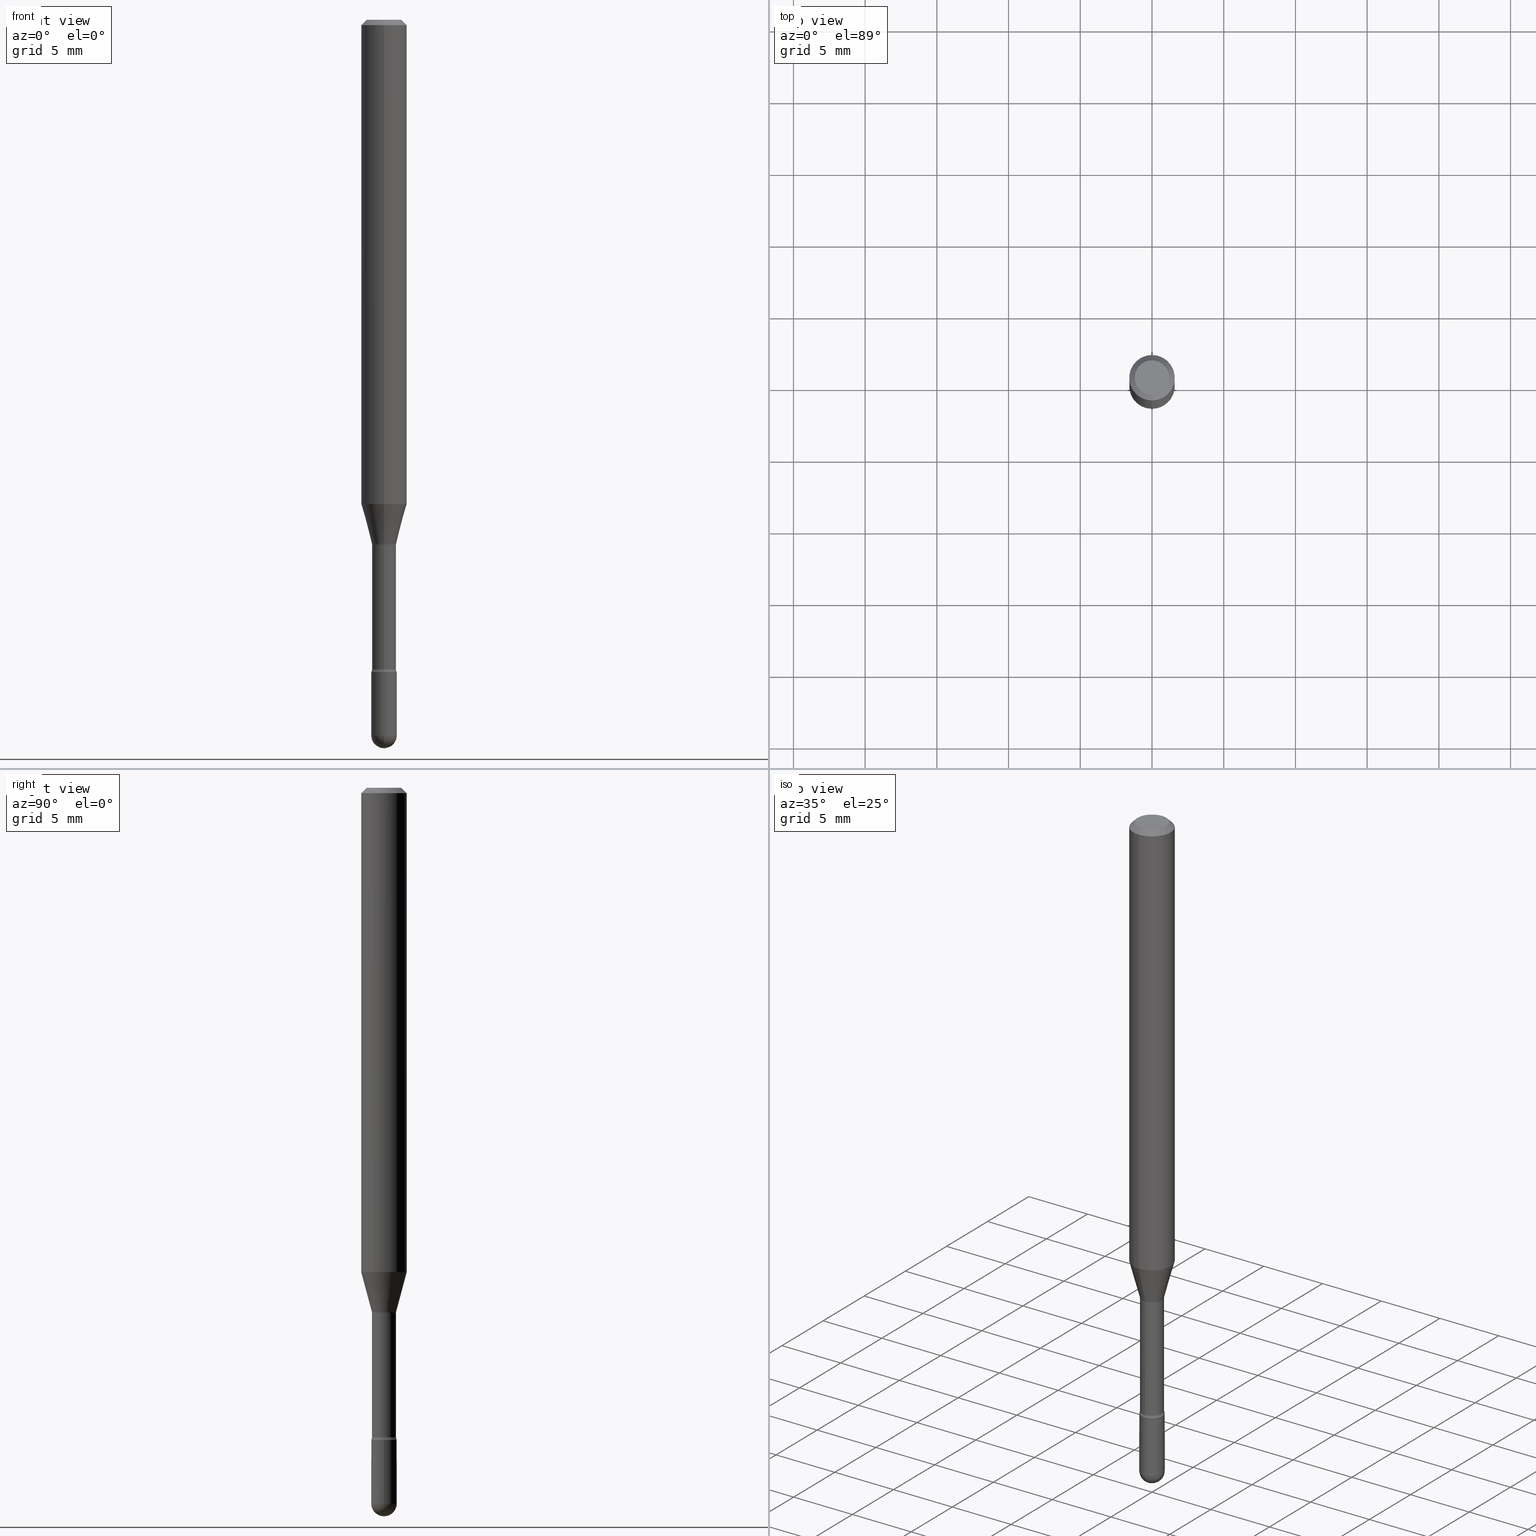
[diagram: canonical four-view strip — front | top / right | iso, engineering-drawing reading convention]
A machine part, canonical four-view strip (front | top / right | iso — engineering-drawing reading convention). The complete STEP part file that produces these views, byte-faithful:
ISO-10303-21;
HEADER;
FILE_DESCRIPTION (( 'STEP AP203' ),
    '1' );
FILE_NAME ('04553.STEP',
    '2024-04-09T21:52:09',
    ( '' ),
    ( '' ),
    'SwSTEP 2.0',
    'SolidWorks 2023',
    '' );
FILE_SCHEMA (( 'CONFIG_CONTROL_DESIGN' ));
ENDSEC;

DATA;
#1 = FACE_OUTER_BOUND ( 'NONE', #145, .T. ) ;
#2 = ADVANCED_FACE ( 'NONE', ( #355 ), #127, .T. ) ;
#3 = CC_DESIGN_PERSON_AND_ORGANIZATION_ASSIGNMENT ( #174, #13, ( #522 ) ) ;
#4 =( CONVERSION_BASED_UNIT ( 'INCH', #405 ) LENGTH_UNIT ( ) NAMED_UNIT ( #55 ) );
#5 = AXIS2_PLACEMENT_3D ( 'NONE', #250, #348, #257 ) ;
#6 = ORIENTED_EDGE ( 'NONE', *, *, #410, .F. ) ;
#7 = LINE ( 'NONE', #47, #313 ) ;
#8 = ORIENTED_EDGE ( 'NONE', *, *, #318, .F. ) ;
#9 = COORDINATED_UNIVERSAL_TIME_OFFSET ( 5, 0, .BEHIND. ) ;
#10 = DIRECTION ( 'NONE',  ( 1.000000000000000000, -7.105427357601001070E-15, 4.926314578134730342E-29 ) ) ;
#11 = EDGE_CURVE ( 'NONE', #330, #320, #337, .T. ) ;
#12 = DIRECTION ( 'NONE',  ( -2.445468806185136597E-29, 3.491481338843145583E-15, 1.000000000000000000 ) ) ;
#13 = PERSON_AND_ORGANIZATION_ROLE ( 'design_owner' ) ;
#14 = ORIENTED_EDGE ( 'NONE', *, *, #156, .T. ) ;
#15 = CARTESIAN_POINT ( 'NONE',  ( 4.805346204153793345E-29, -6.860760830826780393E-15, -1.964999999999999858 ) ) ;
#16 = ADVANCED_FACE ( 'NONE', ( #224 ), #151, .T. ) ;
#17 = CIRCLE ( 'NONE', #29, 0.03500000000000000333 ) ;
#18 = FACE_OUTER_BOUND ( 'NONE', #560, .T. ) ;
#19 = DATE_TIME_ROLE ( 'classification_date' ) ;
#20 = CARTESIAN_POINT ( 'NONE',  ( -4.364351673553592768E-16, -0.06250000000000467681, -1.329531296095961101 ) ) ;
#21 = VERTEX_POINT ( 'NONE', #203 ) ;
#22 = CARTESIAN_POINT ( 'NONE',  ( 3.407447217031514627E-16, 0.03341111260565895330, -1.438092501787272992 ) ) ;
#23 = AXIS2_PLACEMENT_3D ( 'NONE', #57, #360, #187 ) ;
#24 = DIRECTION ( 'NONE',  ( -6.982962677686266711E-15, -1.000000000000000000, 3.491405365317297718E-15 ) ) ;
#25 = DIRECTION ( 'NONE',  ( 1.000000000000000000, -6.982962677686276966E-15, 0.000000000000000000 ) ) ;
#26 = ADVANCED_FACE ( 'NONE', ( #150 ), #115, .F. ) ;
#27 = AXIS2_PLACEMENT_3D ( 'NONE', #528, #482, #288 ) ;
#28 = ORIENTED_EDGE ( 'NONE', *, *, #479, .T. ) ;
#29 = AXIS2_PLACEMENT_3D ( 'NONE', #159, #463, #322 ) ;
#30 = APPROVAL_PERSON_ORGANIZATION ( #49, #34, #210 ) ;
#31 = ORIENTED_EDGE ( 'NONE', *, *, #123, .T. ) ;
#32 = ORIENTED_EDGE ( 'NONE', *, *, #11, .F. ) ;
#33 = DIRECTION ( 'NONE',  ( -2.445521858214685892E-29, 3.491405365317297324E-15, 1.000000000000000000 ) ) ;
#34 = APPROVAL ( #446, 'UNSPECIFIED' ) ;
#35 = LINE ( 'NONE', #391, #380 ) ;
#36 = VERTEX_POINT ( 'NONE', #531 ) ;
#37 = DIRECTION ( 'NONE',  ( -6.982962677686266711E-15, -1.000000000000000000, 0.000000000000000000 ) ) ;
#38 = CIRCLE ( 'NONE', #166, 0.03500000000000000333 ) ;
#39 = DIRECTION ( 'NONE',  ( -1.000000000000000000, 6.982962677686265922E-15, -4.883557194083112340E-29 ) ) ;
#40 = DIRECTION ( 'NONE',  ( -2.445521858214685892E-29, 3.491405365317297324E-15, 1.000000000000000000 ) ) ;
#41 = PLANE ( 'NONE',  #349 ) ;
#42 = FACE_OUTER_BOUND ( 'NONE', #286, .T. ) ;
#43 = DIRECTION ( 'NONE',  ( -6.982962677686265922E-15, -1.000000000000000000, 3.491405365317297324E-15 ) ) ;
#44 = ORIENTED_EDGE ( 'NONE', *, *, #156, .F. ) ;
#45 = CALENDAR_DATE ( 2024, 9, 4 ) ;
#46 = AXIS2_PLACEMENT_3D ( 'NONE', #362, #262, #401 ) ;
#47 = CARTESIAN_POINT ( 'NONE',  ( 4.440892098500625669E-16, 0.06250000000000000000, 2.598605635589149558E-16 ) ) ;
#48 = EDGE_CURVE ( 'NONE', #272, #545, #238, .T. ) ;
#49 = PERSON_AND_ORGANIZATION ( #180, #462 ) ;
#50 = CARTESIAN_POINT ( 'NONE',  ( 4.377389163071394665E-29, -6.249751596529231267E-15, -1.790000000000000036 ) ) ;
#51 = CARTESIAN_POINT ( 'NONE',  ( 0.000000000000000000, 0.000000000000000000, 0.000000000000000000 ) ) ;
#52 = ADVANCED_FACE ( 'NONE', ( #254 ), #152, .T. ) ;
#53 = CARTESIAN_POINT ( 'NONE',  ( 3.403499704291318562E-16, 0.04789999999999382252, -1.782345589506696193 ) ) ;
#54 =( LENGTH_UNIT ( ) NAMED_UNIT ( * ) SI_UNIT ( $, .METRE. ) );
#55 = DIMENSIONAL_EXPONENTS ( 1.000000000000000000, 0.000000000000000000, 0.000000000000000000, 0.000000000000000000, 0.000000000000000000, 0.000000000000000000, 0.000000000000000000 ) ;
#56 = AXIS2_PLACEMENT_3D ( 'NONE', #356, #136, #298 ) ;
#57 = CARTESIAN_POINT ( 'NONE',  ( 3.668282787322048631E-31, -5.237108047975974089E-17, -0.01500000000000008271 ) ) ;
#58 = AXIS2_PLACEMENT_3D ( 'NONE', #276, #418, #465 ) ;
#59 = VECTOR ( 'NONE', #66, 39.37007874015749564 ) ;
#60 = LOCAL_TIME ( 17, 52, 9.000000000000000000, #443 ) ;
#61 = PERSON_AND_ORGANIZATION_ROLE ( 'classification_officer' ) ;
#62 = DIRECTION ( 'NONE',  ( -6.982962677686265922E-15, -1.000000000000000000, 3.491405365317297324E-15 ) ) ;
#63 = DIRECTION ( 'NONE',  ( -6.982962677686266711E-15, -1.000000000000000000, 0.000000000000000000 ) ) ;
#64 = APPROVAL_DATE_TIME ( #299, #34 ) ;
#65 = ORIENTED_EDGE ( 'NONE', *, *, #217, .T. ) ;
#66 = DIRECTION ( 'NONE',  ( -1.807323732225329350E-15, -0.2588190451025180194, 0.9659258262890689783 ) ) ;
#67 = AXIS2_PLACEMENT_3D ( 'NONE', #525, #485, #520 ) ;
#68 = AXIS2_PLACEMENT_3D ( 'NONE', #437, #534, #487 ) ;
#69 = LOCAL_TIME ( 17, 52, 9.000000000000000000, #413 ) ;
#70 = CARTESIAN_POINT ( 'NONE',  ( -2.297394720958428512E-16, -0.03290000000000502939, -1.441974787463810914 ) ) ;
#71 = EDGE_LOOP ( 'NONE', ( #227, #251, #491, #133 ) ) ;
#72 = ORIENTED_EDGE ( 'NONE', *, *, #230, .F. ) ;
#73 = ADVANCED_FACE ( 'NONE', ( #295 ), #41, .F. ) ;
#74 = APPLICATION_CONTEXT ( 'configuration controlled 3d designs of mechanical parts and assemblies' ) ;
#75 = TOROIDAL_SURFACE ( 'NONE', #399, 0.04790000000000004671, 0.01500000000000008098 ) ;
#76 = CIRCLE ( 'NONE', #68, 0.04749999999999999362 ) ;
#77 = ORIENTED_EDGE ( 'NONE', *, *, #83, .F. ) ;
#78 = CARTESIAN_POINT ( 'NONE',  ( -0.03500000000000000333, 2.486899575160350887E-16, -1.721627281589217108E-30 ) ) ;
#79 = ORIENTED_EDGE ( 'NONE', *, *, #314, .F. ) ;
#80 = DIRECTION ( 'NONE',  ( -2.445521858214685892E-29, 3.491405365317297324E-15, 1.000000000000000000 ) ) ;
#81 = EDGE_LOOP ( 'NONE', ( #533, #427, #87, #346 ) ) ;
#82 = DIRECTION ( 'NONE',  ( 1.000000000000000000, -6.982962677686276966E-15, 0.000000000000000000 ) ) ;
#83 = EDGE_CURVE ( 'NONE', #532, #21, #35, .T. ) ;
#84 = CARTESIAN_POINT ( 'NONE',  ( 4.805346204153793345E-29, -6.860760830826780393E-15, -1.964999999999999858 ) ) ;
#85 = CIRCLE ( 'NONE', #514, 0.03341111260566397706 ) ;
#86 = CARTESIAN_POINT ( 'NONE',  ( 4.805346204153793345E-29, -6.860760830826780393E-15, -1.964999999999999858 ) ) ;
#87 = ORIENTED_EDGE ( 'NONE', *, *, #314, .T. ) ;
#88 = CARTESIAN_POINT ( 'NONE',  ( 3.516886647255418593E-29, -5.020963876562660420E-15, -1.438092501787272992 ) ) ;
#89 = VERTEX_POINT ( 'NONE', #394 ) ;
#90 = FACE_OUTER_BOUND ( 'NONE', #81, .T. ) ;
#91 = CALENDAR_DATE ( 2024, 9, 4 ) ;
#92 = AXIS2_PLACEMENT_3D ( 'NONE', #122, #476, #199 ) ;
#93 = CIRCLE ( 'NONE', #211, 0.01500000000000001853 ) ;
#94 = FACE_OUTER_BOUND ( 'NONE', #340, .T. ) ;
#95 = APPLICATION_PROTOCOL_DEFINITION ( 'international standard', 'config_control_design', 1994, #74 ) ;
#96 = DIRECTION ( 'NONE',  ( -6.982962677686265922E-15, -1.000000000000000000, 3.491405365317296141E-15 ) ) ;
#97 = EDGE_LOOP ( 'NONE', ( #163, #455 ) ) ;
#98 = DIRECTION ( 'NONE',  ( -2.445521858214685892E-29, 3.491405365317297324E-15, 1.000000000000000000 ) ) ;
#99 = APPLICATION_CONTEXT ( 'configuration controlled 3d designs of mechanical parts and assemblies' ) ;
#100 = ADVANCED_FACE ( 'NONE', ( #1 ), #139, .T. ) ;
#101 = AXIS2_PLACEMENT_3D ( 'NONE', #88, #436, #125 ) ;
#102 = EDGE_CURVE ( 'NONE', #331, #513, #302, .T. ) ;
#103 = FACE_OUTER_BOUND ( 'NONE', #97, .T. ) ;
#104 = CC_DESIGN_SECURITY_CLASSIFICATION ( #383, ( #454 ) ) ;
#105 = ORIENTED_EDGE ( 'NONE', *, *, #442, .F. ) ;
#106 = CARTESIAN_POINT ( 'NONE',  ( -4.364351673553912750E-16, -0.06250000000000005551, -0.01499999999999986587 ) ) ;
#107 = EDGE_LOOP ( 'NONE', ( #464, #508, #474, #509 ) ) ;
#108 = CYLINDRICAL_SURFACE ( 'NONE', #468, 0.03500000000000000333 ) ;
#109 = LINE ( 'NONE', #392, #111 ) ;
#110 = CLOSED_SHELL ( 'NONE', ( #26, #376, #538, #202, #526, #52, #338, #466, #2, #197, #73, #209, #261, #419 ) ) ;
#111 = VECTOR ( 'NONE', #279, 39.37007874015748143 ) ;
#112 = EDGE_CURVE ( 'NONE', #457, #36, #161, .T. ) ;
#113 = CARTESIAN_POINT ( 'NONE',  ( -2.297394720958780541E-16, -0.03289999999999998481, 5.929406354101851004E-16 ) ) ;
#114 = EDGE_CURVE ( 'NONE', #513, #89, #7, .T. ) ;
#115 = TOROIDAL_SURFACE ( 'NONE', #27, 0.04789999999999999813, 0.01500000000000002373 ) ;
#116 = EDGE_LOOP ( 'NONE', ( #556, #14, #241, #77, #515 ) ) ;
#117 = CIRCLE ( 'NONE', #252, 0.06250000000000000000 ) ;
#118 = ORIENTED_EDGE ( 'NONE', *, *, #208, .T. ) ;
#119 = DIRECTION ( 'NONE',  ( -6.982962677686265922E-15, -1.000000000000000000, 3.491405365317296141E-15 ) ) ;
#120 = DIRECTION ( 'NONE',  ( 6.982962677686265922E-15, 1.000000000000000000, -3.483106191921935554E-15 ) ) ;
#121 = DIRECTION ( 'NONE',  ( 1.000000000000000000, -6.982962677686265922E-15, 4.876176775795936353E-29 ) ) ;
#122 = CARTESIAN_POINT ( 'NONE',  ( 4.805346204153793345E-29, -6.860760830826780393E-15, -1.964999999999999858 ) ) ;
#123 = EDGE_CURVE ( 'NONE', #164, #425, #480, .T. ) ;
#124 = CARTESIAN_POINT ( 'NONE',  ( -2.333085523452895390E-16, -0.03341111260566900082, -1.438092501787272992 ) ) ;
#125 = DIRECTION ( 'NONE',  ( -6.982962677686266711E-15, -1.000000000000000000, 0.000000000000000000 ) ) ;
#126 = ORIENTED_EDGE ( 'NONE', *, *, #11, .T. ) ;
#127 = CONICAL_SURFACE ( 'NONE', #536, 0.06250000000000000000, 0.7853981633974483900 ) ;
#129 = AXIS2_PLACEMENT_3D ( 'NONE', #84, #422, #157 ) ;
#128 =( NAMED_UNIT ( * ) PLANE_ANGLE_UNIT ( ) SI_UNIT ( $, .RADIAN. ) );
#130 = AXIS2_PLACEMENT_3D ( 'NONE', #51, #256, #141 ) ;
#131 = ORIENTED_EDGE ( 'NONE', *, *, #123, .F. ) ;
#132 = CARTESIAN_POINT ( 'NONE',  ( -2.444036937189758884E-16, -0.03500000000000629691, -1.789999999999999813 ) ) ;
#133 = ORIENTED_EDGE ( 'NONE', *, *, #230, .T. ) ;
#134 = PERSON_AND_ORGANIZATION ( #180, #462 ) ;
#135 = ORIENTED_EDGE ( 'NONE', *, *, #243, .T. ) ;
#136 = DIRECTION ( 'NONE',  ( 2.445521858214685331E-29, -3.491405365317297324E-15, -1.000000000000000000 ) ) ;
#137 = ORIENTED_EDGE ( 'NONE', *, *, #518, .T. ) ;
#138 = COORDINATED_UNIVERSAL_TIME_OFFSET ( 5, 0, .BEHIND. ) ;
#139 = SPHERICAL_SURFACE ( 'NONE', #506, 0.03500000000000001721 ) ;
#140 = CC_DESIGN_DATE_AND_TIME_ASSIGNMENT ( #297, #490, ( #172 ) ) ;
#141 = DIRECTION ( 'NONE',  ( 1.000000000000000000, 0.000000000000000000, 0.000000000000000000 ) ) ;
#142 = AXIS2_PLACEMENT_3D ( 'NONE', #438, #255, #285 ) ;
#143 = VECTOR ( 'NONE', #160, 39.37007874015748143 ) ;
#144 = CARTESIAN_POINT ( 'NONE',  ( -1.169113584055446105E-44, 1.669184350826100908E-30, 4.780733988912460139E-16 ) ) ;
#145 = EDGE_LOOP ( 'NONE', ( #290, #444, #420, #553 ) ) ;
#146 = EDGE_LOOP ( 'NONE', ( #334, #396, #65, #147 ) ) ;
#147 = ORIENTED_EDGE ( 'NONE', *, *, #328, .T. ) ;
#148 = DIRECTION ( 'NONE',  ( -6.982962677686267499E-15, -1.000000000000000000, 0.000000000000000000 ) ) ;
#149 = CARTESIAN_POINT ( 'NONE',  ( 3.516886647255418593E-29, -5.020963876562660420E-15, -1.438092501787272992 ) ) ;
#150 = FACE_OUTER_BOUND ( 'NONE', #242, .T. ) ;
#151 = CYLINDRICAL_SURFACE ( 'NONE', #431, 0.03500000000000000333 ) ;
#152 = CONICAL_SURFACE ( 'NONE', #101, 0.03341111260566397706, 0.2617993877991501850 ) ;
#153 = DIRECTION ( 'NONE',  ( -2.445521858214685892E-29, 3.491405365317297324E-15, 1.000000000000000000 ) ) ;
#154 = CIRCLE ( 'NONE', #537, 0.06250000000000000000 ) ;
#155 = CALENDAR_DATE ( 2024, 9, 4 ) ;
#156 = EDGE_CURVE ( 'NONE', #272, #308, #517, .T. ) ;
#157 = DIRECTION ( 'NONE',  ( 6.982962677686265922E-15, 1.000000000000000000, 0.000000000000000000 ) ) ;
#158 = APPROVAL_DATE_TIME ( #223, #467 ) ;
#159 = CARTESIAN_POINT ( 'NONE',  ( 4.377389163071394665E-29, -6.249751596529231267E-15, -1.790000000000000036 ) ) ;
#160 = DIRECTION ( 'NONE',  ( -4.851104656540964275E-15, -0.7071067811865500152, -0.7071067811865450192 ) ) ;
#161 = CIRCLE ( 'NONE', #92, 0.03500000000000001721 ) ;
#162 = EDGE_CURVE ( 'NONE', #545, #532, #493, .T. ) ;
#163 = ORIENTED_EDGE ( 'NONE', *, *, #424, .T. ) ;
#164 = VERTEX_POINT ( 'NONE', #132 ) ;
#165 = AXIS2_PLACEMENT_3D ( 'NONE', #245, #10, #359 ) ;
#166 = AXIS2_PLACEMENT_3D ( 'NONE', #232, #388, #25 ) ;
#167 = CARTESIAN_POINT ( 'NONE',  ( 4.892434153376336703E-29, -6.980819545787783111E-15, -2.000000000000000000 ) ) ;
#168 = DIRECTION ( 'NONE',  ( 2.445521858214685892E-29, -3.491405365317297324E-15, -1.000000000000000000 ) ) ;
#169 = CARTESIAN_POINT ( 'NONE',  ( 2.444036937190630575E-16, 0.03499999999999375139, -1.790000000000000036 ) ) ;
#170 = DIRECTION ( 'NONE',  ( -2.445468806185136597E-29, 3.491481338843145583E-15, 1.000000000000000000 ) ) ;
#171 = ORIENTED_EDGE ( 'NONE', *, *, #114, .F. ) ;
#172 = PRODUCT_DEFINITION ( 'UNKNOWN', '', #454, #244 ) ;
#173 = CARTESIAN_POINT ( 'NONE',  ( 0.03500000000000000333, -6.799659907397025402E-15, -1.964999999999999858 ) ) ;
#175 = VECTOR ( 'NONE', #287, 39.37007874015748143 ) ;
#174 = PERSON_AND_ORGANIZATION ( #180, #462 ) ;
#176 = CARTESIAN_POINT ( 'NONE',  ( 2.337685600651165364E-16, 0.03289999999999496105, -1.441974787463810914 ) ) ;
#177 = DIRECTION ( 'NONE',  ( -2.445521858214685892E-29, 3.491405365317297324E-15, 1.000000000000000000 ) ) ;
#178 = FACE_OUTER_BOUND ( 'NONE', #107, .T. ) ;
#179 = DIRECTION ( 'NONE',  ( -1.000000000000000000, 6.982962677686265922E-15, -4.883557194083112901E-29 ) ) ;
#180 = PERSON ( 'UNSPECIFIED', 'UNSPECIFIED', 'UNSPECIFIED', ('UNSPECIFIED'), ('UNSPECIFIED'), ('UNSPECIFIED') ) ;
#181 =( GEOMETRIC_REPRESENTATION_CONTEXT ( 3 ) GLOBAL_UNCERTAINTY_ASSIGNED_CONTEXT ( ( #555 ) ) GLOBAL_UNIT_ASSIGNED_CONTEXT ( ( #4, #128, #264 ) ) REPRESENTATION_CONTEXT ( 'NONE', 'WORKASPACE' ) );
#182 = LOCAL_TIME ( 17, 52, 9.000000000000000000, #9 ) ;
#183 = DIRECTION ( 'NONE',  ( 7.105427357601001859E-15, 1.000000000000000000, 0.000000000000000000 ) ) ;
#184 = FACE_OUTER_BOUND ( 'NONE', #321, .T. ) ;
#185 = APPROVAL_STATUS ( 'not_yet_approved' ) ;
#186 = DIRECTION ( 'NONE',  ( -2.445521858214685892E-29, 3.491405365317297324E-15, 1.000000000000000000 ) ) ;
#187 = DIRECTION ( 'NONE',  ( -6.982962677686265922E-15, -1.000000000000000000, 3.483106191921935554E-15 ) ) ;
#188 = DIRECTION ( 'NONE',  ( -1.000000000000000000, 7.105427357601001070E-15, -4.926315508542082329E-29 ) ) ;
#189 = DIRECTION ( 'NONE',  ( -2.445521858214685892E-29, 3.491405365317297324E-15, 1.000000000000000000 ) ) ;
#190 = ORIENTED_EDGE ( 'NONE', *, *, #473, .F. ) ;
#191 = CIRCLE ( 'NONE', #165, 0.01500000000000001853 ) ;
#192 = EDGE_CURVE ( 'NONE', #532, #36, #291, .T. ) ;
#193 = AXIS2_PLACEMENT_3D ( 'NONE', #144, #510, #119 ) ;
#194 = EDGE_CURVE ( 'NONE', #320, #330, #551, .T. ) ;
#195 = VERTEX_POINT ( 'NONE', #176 ) ;
#196 = ORIENTED_EDGE ( 'NONE', *, *, #102, .T. ) ;
#197 = ADVANCED_FACE ( 'NONE', ( #428 ), #562, .F. ) ;
#198 = FACE_OUTER_BOUND ( 'NONE', #116, .T. ) ;
#199 = DIRECTION ( 'NONE',  ( 6.982962677686265922E-15, 1.000000000000000000, 0.000000000000000000 ) ) ;
#200 = CIRCLE ( 'NONE', #282, 0.01500000000000007924 ) ;
#201 = CARTESIAN_POINT ( 'NONE',  ( 3.840629472727447874E-16, 0.04749999999999999362, -2.485923956665947374E-16 ) ) ;
#202 = ADVANCED_FACE ( 'NONE', ( #90 ), #371, .T. ) ;
#203 = CARTESIAN_POINT ( 'NONE',  ( 0.03500000000000000333, -6.494155290248250444E-15, -1.790000000000000036 ) ) ;
#204 = DIRECTION ( 'NONE',  ( -6.982962677686265922E-15, -1.000000000000000000, 0.000000000000000000 ) ) ;
#205 = LINE ( 'NONE', #124, #59 ) ;
#206 = DIRECTION ( 'NONE',  ( -2.445468806185136877E-29, 3.491481338843145188E-15, 1.000000000000000000 ) ) ;
#207 = DIRECTION ( 'NONE',  ( -2.445521858214685331E-29, 3.491405365317297324E-15, 1.000000000000000000 ) ) ;
#208 = EDGE_CURVE ( 'NONE', #280, #195, #191, .T. ) ;
#209 = ADVANCED_FACE ( 'NONE', ( #459 ), #75, .F. ) ;
#211 = AXIS2_PLACEMENT_3D ( 'NONE', #267, #319, #445 ) ;
#210 = APPROVAL_ROLE ( '' ) ;
#212 = CC_DESIGN_APPROVAL ( #34, ( #454 ) ) ;
#213 = CARTESIAN_POINT ( 'NONE',  ( 3.668282787322048631E-31, -5.237108047975974089E-17, -0.01500000000000008271 ) ) ;
#214 = VERTEX_POINT ( 'NONE', #106 ) ;
#215 = CARTESIAN_POINT ( 'NONE',  ( 3.526380861737225487E-29, -5.034518509603418208E-15, -1.441974787463810914 ) ) ;
#216 = DIRECTION ( 'NONE',  ( -6.982962677686265922E-15, -1.000000000000000000, 3.491405365317297324E-15 ) ) ;
#217 = EDGE_CURVE ( 'NONE', #395, #89, #404, .T. ) ;
#218 = CARTESIAN_POINT ( 'NONE',  ( 4.358670540980283234E-29, -6.223026365132013835E-15, -1.782345589506695971 ) ) ;
#219 = DATE_AND_TIME ( #530, #182 ) ;
#220 = CIRCLE ( 'NONE', #363, 0.01500000000000007924 ) ;
#221 = CARTESIAN_POINT ( 'NONE',  ( -2.297394720958343216E-16, -0.03290000000000618818, -1.782345589506695971 ) ) ;
#222 = CC_DESIGN_DATE_AND_TIME_ASSIGNMENT ( #226, #19, ( #383 ) ) ;
#223 = DATE_AND_TIME ( #155, #554 ) ;
#224 = FACE_OUTER_BOUND ( 'NONE', #275, .T. ) ;
#225 = CYLINDRICAL_SURFACE ( 'NONE', #239, 0.03289999999999998481 ) ;
#226 = DATE_AND_TIME ( #229, #69 ) ;
#227 = ORIENTED_EDGE ( 'NONE', *, *, #208, .F. ) ;
#228 = CARTESIAN_POINT ( 'NONE',  ( 4.364351673553919652E-16, 0.06249999999999995143, -0.01500000000000030129 ) ) ;
#229 = CALENDAR_DATE ( 2024, 9, 4 ) ;
#230 = EDGE_CURVE ( 'NONE', #403, #195, #481, .T. ) ;
#231 = VECTOR ( 'NONE', #398, 39.37007874015748143 ) ;
#232 = CARTESIAN_POINT ( 'NONE',  ( 4.377389163071394665E-29, -6.249751596529231267E-15, -1.790000000000000036 ) ) ;
#233 = CIRCLE ( 'NONE', #382, 0.03500000000000000333 ) ;
#234 = LINE ( 'NONE', #113, #507 ) ;
#235 = EDGE_CURVE ( 'NONE', #36, #272, #461, .T. ) ;
#236 = SPHERICAL_SURFACE ( 'NONE', #129, 0.03500000000000001721 ) ;
#237 = MANIFOLD_SOLID_BREP ( 'Body-Move/Copy2[1]', #499 ) ;
#238 = CIRCLE ( 'NONE', #558, 0.03500000000000000333 ) ;
#239 = AXIS2_PLACEMENT_3D ( 'NONE', #309, #153, #96 ) ;
#240 = EDGE_LOOP ( 'NONE', ( #323, #472, #249, #281 ) ) ;
#241 = ORIENTED_EDGE ( 'NONE', *, *, #424, .F. ) ;
#242 = EDGE_LOOP ( 'NONE', ( #316, #118, #28, #8 ) ) ;
#243 = EDGE_CURVE ( 'NONE', #320, #195, #495, .T. ) ;
#244 = DESIGN_CONTEXT ( 'detailed design', #99, 'design' ) ;
#245 = CARTESIAN_POINT ( 'NONE',  ( 3.403499704291231294E-16, 0.04789999999999496050, -1.441974787463811136 ) ) ;
#246 = ORIENTED_EDGE ( 'NONE', *, *, #479, .F. ) ;
#247 = MANIFOLD_SOLID_BREP ( 'Body-Move/Copy2[2]', #110 ) ;
#248 = CARTESIAN_POINT ( 'NONE',  ( 2.374002335562076701E-16, 0.03341111260565896024, -1.438092501787272992 ) ) ;
#249 = ORIENTED_EDGE ( 'NONE', *, *, #102, .F. ) ;
#250 = CARTESIAN_POINT ( 'NONE',  ( 4.377484126204287621E-29, -6.249615603917962072E-15, -1.790000000000000036 ) ) ;
#251 = ORIENTED_EDGE ( 'NONE', *, *, #266, .F. ) ;
#252 = AXIS2_PLACEMENT_3D ( 'NONE', #301, #456, #492 ) ;
#253 = CARTESIAN_POINT ( 'NONE',  ( 3.516886647255418593E-29, -5.020963876562660420E-15, -1.438092501787272992 ) ) ;
#254 = FACE_OUTER_BOUND ( 'NONE', #240, .T. ) ;
#255 = DIRECTION ( 'NONE',  ( -2.445468806185136597E-29, 3.491481338843145583E-15, 1.000000000000000000 ) ) ;
#256 = DIRECTION ( 'NONE',  ( 0.000000000000000000, 0.000000000000000000, 1.000000000000000000 ) ) ;
#257 = DIRECTION ( 'NONE',  ( -6.982962677686265922E-15, -1.000000000000000000, 0.000000000000000000 ) ) ;
#259 = AXIS2_PLACEMENT_3D ( 'NONE', #50, #546, #369 ) ;
#258 = MECHANICAL_CONTEXT ( 'NONE', #74, 'mechanical' ) ;
#260 = DIRECTION ( 'NONE',  ( -2.445521858214685892E-29, 3.491405365317297324E-15, 1.000000000000000000 ) ) ;
#261 = ADVANCED_FACE ( 'NONE', ( #184 ), #225, .T. ) ;
#262 = DIRECTION ( 'NONE',  ( -2.445521858214685892E-29, 3.491405365317297324E-15, 1.000000000000000000 ) ) ;
#263 = DIRECTION ( 'NONE',  ( -2.445521858214685892E-29, 3.491405365317297324E-15, 1.000000000000000000 ) ) ;
#264 =( NAMED_UNIT ( * ) SI_UNIT ( $, .STERADIAN. ) SOLID_ANGLE_UNIT ( ) );
#265 = EDGE_LOOP ( 'NONE', ( #131, #190 ) ) ;
#266 = EDGE_CURVE ( 'NONE', #347, #280, #85, .T. ) ;
#267 = CARTESIAN_POINT ( 'NONE',  ( -3.344839122611368617E-16, -0.04790000000000502883, -1.441974787463810692 ) ) ;
#268 = DIRECTION ( 'NONE',  ( -2.445521858214685892E-29, 3.491405365317297324E-15, 1.000000000000000000 ) ) ;
#269 = AXIS2_PLACEMENT_3D ( 'NONE', #293, #483, #216 ) ;
#270 = PLANE ( 'NONE',  #259 ) ;
#271 = CARTESIAN_POINT ( 'NONE',  ( 4.358765098031164944E-29, -6.222890954053299326E-15, -1.782345589506695971 ) ) ;
#272 = VERTEX_POINT ( 'NONE', #406 ) ;
#273 = DIRECTION ( 'NONE',  ( -2.445521858214685892E-29, 3.491405365317297324E-15, 1.000000000000000000 ) ) ;
#274 = CC_DESIGN_PERSON_AND_ORGANIZATION_ASSIGNMENT ( #365, #370, ( #454 ) ) ;
#275 = EDGE_LOOP ( 'NONE', ( #44, #329, #335, #501, #315 ) ) ;
#276 = CARTESIAN_POINT ( 'NONE',  ( -1.169113584055446105E-44, 1.669184350826100908E-30, 4.780733988912460139E-16 ) ) ;
#277 = DIRECTION ( 'NONE',  ( -2.445521858214685892E-29, 3.491405365317297324E-15, 1.000000000000000000 ) ) ;
#278 = CIRCLE ( 'NONE', #23, 0.06250000000000000000 ) ;
#279 = DIRECTION ( 'NONE',  ( -2.445521858214685892E-29, 3.491405365317297324E-15, 1.000000000000000000 ) ) ;
#280 = VERTEX_POINT ( 'NONE', #22 ) ;
#281 = ORIENTED_EDGE ( 'NONE', *, *, #379, .F. ) ;
#282 = AXIS2_PLACEMENT_3D ( 'NONE', #364, #179, #148 ) ;
#283 = ORIENTED_EDGE ( 'NONE', *, *, #300, .F. ) ;
#284 = FACE_OUTER_BOUND ( 'NONE', #71, .T. ) ;
#285 = DIRECTION ( 'NONE',  ( 1.000000000000000000, -6.982962677686276966E-15, 0.000000000000000000 ) ) ;
#286 = EDGE_LOOP ( 'NONE', ( #196, #386, #79, #105 ) ) ;
#287 = DIRECTION ( 'NONE',  ( 1.839019923739599526E-15, 0.2588190451025248473, 0.9659258262890670910 ) ) ;
#288 = DIRECTION ( 'NONE',  ( -6.982962677686265133E-15, -1.000000000000000000, 3.491405365317297324E-15 ) ) ;
#289 = AXIS2_PLACEMENT_3D ( 'NONE', #389, #432, #204 ) ;
#290 = ORIENTED_EDGE ( 'NONE', *, *, #518, .F. ) ;
#291 = CIRCLE ( 'NONE', #142, 0.03500000000000000333 ) ;
#292 = AXIS2_PLACEMENT_3D ( 'NONE', #149, #186, #311 ) ;
#293 = CARTESIAN_POINT ( 'NONE',  ( 4.358670540980283234E-29, -6.223026365132013835E-15, -1.782345589506695971 ) ) ;
#294 = CC_DESIGN_PERSON_AND_ORGANIZATION_ASSIGNMENT ( #452, #539, ( #454 ) ) ;
#295 = FACE_OUTER_BOUND ( 'NONE', #265, .T. ) ;
#296 = ORIENTED_EDGE ( 'NONE', *, *, #112, .F. ) ;
#297 = DATE_AND_TIME ( #45, #60 ) ;
#298 = DIRECTION ( 'NONE',  ( 6.982962677686265922E-15, 1.000000000000000000, -3.491405365317297324E-15 ) ) ;
#299 = DATE_AND_TIME ( #91, #352 ) ;
#300 = EDGE_CURVE ( 'NONE', #320, #425, #220, .T. ) ;
#301 = CARTESIAN_POINT ( 'NONE',  ( 3.251397845783175499E-29, -4.641932700546700706E-15, -1.329531296095961546 ) ) ;
#302 = CIRCLE ( 'NONE', #441, 0.06250000000000000000 ) ;
#304 = TOROIDAL_SURFACE ( 'NONE', #269, 0.04790000000000004671, 0.01500000000000008098 ) ;
#303 = PERSON_AND_ORGANIZATION ( #180, #462 ) ;
#305 = APPROVAL_PERSON_ORGANIZATION ( #303, #354, #448 ) ;
#306 = DIRECTION ( 'NONE',  ( 1.000000000000000000, -6.982962677686276966E-15, 0.000000000000000000 ) ) ;
#307 = EDGE_CURVE ( 'NONE', #330, #164, #200, .T. ) ;
#308 = VERTEX_POINT ( 'NONE', #497 ) ;
#309 = CARTESIAN_POINT ( 'NONE',  ( -1.169113584055446105E-44, 1.669184350826100908E-30, 4.780733988912460139E-16 ) ) ;
#310 = PERSON_AND_ORGANIZATION ( #180, #462 ) ;
#311 = DIRECTION ( 'NONE',  ( -6.982962677686266711E-15, -1.000000000000000000, 0.000000000000000000 ) ) ;
#312 = ADVANCED_BREP_SHAPE_REPRESENTATION ( '04553', ( #237, #247, #130 ), #181 ) ;
#313 = VECTOR ( 'NONE', #177, 39.37007874015748143 ) ;
#314 = EDGE_CURVE ( 'NONE', #214, #89, #154, .T. ) ;
#315 = ORIENTED_EDGE ( 'NONE', *, *, #412, .F. ) ;
#316 = ORIENTED_EDGE ( 'NONE', *, *, #512, .F. ) ;
#317 = CC_DESIGN_APPROVAL ( #467, ( #383 ) ) ;
#318 = EDGE_CURVE ( 'NONE', #347, #403, #93, .T. ) ;
#319 = DIRECTION ( 'NONE',  ( -1.000000000000000000, 6.982962677686265922E-15, -4.883557194083112901E-29 ) ) ;
#320 = VERTEX_POINT ( 'NONE', #450 ) ;
#321 = EDGE_LOOP ( 'NONE', ( #469, #387, #458, #246 ) ) ;
#322 = DIRECTION ( 'NONE',  ( 1.000000000000000000, -6.982962677686276966E-15, 0.000000000000000000 ) ) ;
#323 = ORIENTED_EDGE ( 'NONE', *, *, #266, .T. ) ;
#324 = LINE ( 'NONE', #248, #175 ) ;
#325 = SECURITY_CLASSIFICATION_LEVEL ( 'unclassified' ) ;
#326 = DIRECTION ( 'NONE',  ( -2.445468806185136597E-29, 3.491481338843145583E-15, 1.000000000000000000 ) ) ;
#327 = TOROIDAL_SURFACE ( 'NONE', #417, 0.04789999999999999813, 0.01500000000000002373 ) ;
#328 = EDGE_CURVE ( 'NONE', #89, #214, #278, .T. ) ;
#329 = ORIENTED_EDGE ( 'NONE', *, *, #48, .T. ) ;
#330 = VERTEX_POINT ( 'NONE', #221 ) ;
#331 = VERTEX_POINT ( 'NONE', #20 ) ;
#332 = EDGE_LOOP ( 'NONE', ( #283, #32, #565, #31 ) ) ;
#333 = VERTEX_POINT ( 'NONE', #411 ) ;
#334 = ORIENTED_EDGE ( 'NONE', *, *, #385, .F. ) ;
#335 = ORIENTED_EDGE ( 'NONE', *, *, #162, .T. ) ;
#336 = ORIENTED_EDGE ( 'NONE', *, *, #379, .T. ) ;
#337 = CIRCLE ( 'NONE', #407, 0.03289999999999996400 ) ;
#338 = ADVANCED_FACE ( 'NONE', ( #18 ), #339, .T. ) ;
#339 = CONICAL_SURFACE ( 'NONE', #292, 0.03341111260566397706, 0.2617993877991501850 ) ;
#340 = EDGE_LOOP ( 'NONE', ( #126, #135, #72, #6 ) ) ;
#341 = ORIENTED_EDGE ( 'NONE', *, *, #328, .F. ) ;
#342 = FACE_OUTER_BOUND ( 'NONE', #521, .T. ) ;
#343 = DIRECTION ( 'NONE',  ( 6.982962677686265922E-15, 1.000000000000000000, 0.000000000000000000 ) ) ;
#344 = CARTESIAN_POINT ( 'NONE',  ( 3.526304362048191557E-29, -5.034628061512206795E-15, -1.441974787463810914 ) ) ;
#345 = CARTESIAN_POINT ( 'NONE',  ( 3.251397845783175499E-29, -4.641932700546700706E-15, -1.329531296095961546 ) ) ;
#346 = ORIENTED_EDGE ( 'NONE', *, *, #217, .F. ) ;
#347 = VERTEX_POINT ( 'NONE', #373 ) ;
#348 = DIRECTION ( 'NONE',  ( -2.445521858214685892E-29, 3.491405365317297324E-15, 1.000000000000000000 ) ) ;
#349 = AXIS2_PLACEMENT_3D ( 'NONE', #169, #207, #43 ) ;
#350 = ORIENTED_EDGE ( 'NONE', *, *, #442, .T. ) ;
#351 = AXIS2_PLACEMENT_3D ( 'NONE', #504, #516, #378 ) ;
#352 = LOCAL_TIME ( 17, 52, 9.000000000000000000, #138 ) ;
#353 = APPLICATION_PROTOCOL_DEFINITION ( 'international standard', 'config_control_design', 1994, #99 ) ;
#354 = APPROVAL ( #439, 'UNSPECIFIED' ) ;
#355 = FACE_OUTER_BOUND ( 'NONE', #146, .T. ) ;
#356 = CARTESIAN_POINT ( 'NONE',  ( 3.316907271900976096E-16, 0.04749999999999999362, 3.181962418603981942E-17 ) ) ;
#357 = CYLINDRICAL_SURFACE ( 'NONE', #46, 0.06250000000000000000 ) ;
#358 = ADVANCED_FACE ( 'NONE', ( #103 ), #270, .T. ) ;
#359 = DIRECTION ( 'NONE',  ( 7.105427357601001859E-15, 1.000000000000000000, 0.000000000000000000 ) ) ;
#360 = DIRECTION ( 'NONE',  ( -2.445521858214685892E-29, 3.491405365317297324E-15, 1.000000000000000000 ) ) ;
#361 = EDGE_CURVE ( 'NONE', #513, #331, #117, .T. ) ;
#363 = AXIS2_PLACEMENT_3D ( 'NONE', #53, #540, #183 ) ;
#362 = CARTESIAN_POINT ( 'NONE',  ( -1.169113584055446105E-44, 1.669184350826100908E-30, 4.780733988912460139E-16 ) ) ;
#364 = CARTESIAN_POINT ( 'NONE',  ( -3.344839122611288745E-16, -0.04790000000000627089, -1.782345589506695749 ) ) ;
#365 = PERSON_AND_ORGANIZATION ( #180, #462 ) ;
#366 = CARTESIAN_POINT ( 'NONE',  ( 3.668282787322048631E-31, -5.237108047975974089E-17, -0.01500000000000008271 ) ) ;
#367 = SHAPE_DEFINITION_REPRESENTATION ( #496, #312 ) ;
#368 = PRODUCT_RELATED_PRODUCT_CATEGORY ( 'detail', '', ( #522 ) ) ;
#369 = DIRECTION ( 'NONE',  ( 1.000000000000000000, -6.982962677686265922E-15, 4.876176775795935793E-29 ) ) ;
#370 = PERSON_AND_ORGANIZATION_ROLE ( 'design_supplier' ) ;
#371 = CONICAL_SURFACE ( 'NONE', #523, 0.06250000000000000000, 0.7853981633974483900 ) ;
#372 = CIRCLE ( 'NONE', #408, 0.04749999999999999362 ) ;
#373 = CARTESIAN_POINT ( 'NONE',  ( -2.333085523452895390E-16, -0.03341111260566900082, -1.438092501787272992 ) ) ;
#374 = PERSON_AND_ORGANIZATION ( #180, #462 ) ;
#375 = ORIENTED_EDGE ( 'NONE', *, *, #550, .T. ) ;
#376 = ADVANCED_FACE ( 'NONE', ( #94 ), #535, .T. ) ;
#377 = CARTESIAN_POINT ( 'NONE',  ( 4.440892098500948609E-16, 0.06249999999999532319, -1.329531296095961768 ) ) ;
#378 = DIRECTION ( 'NONE',  ( -6.982962677686265133E-15, -1.000000000000000000, 0.000000000000000000 ) ) ;
#379 = EDGE_CURVE ( 'NONE', #347, #331, #205, .T. ) ;
#380 = VECTOR ( 'NONE', #206, 39.37007874015748143 ) ;
#381 = CIRCLE ( 'NONE', #451, 0.03500000000000001721 ) ;
#382 = AXIS2_PLACEMENT_3D ( 'NONE', #434, #189, #390 ) ;
#383 = SECURITY_CLASSIFICATION ( '', '', #325 ) ;
#384 = EDGE_LOOP ( 'NONE', ( #426, #375 ) ) ;
#385 = EDGE_CURVE ( 'NONE', #333, #214, #519, .T. ) ;
#386 = ORIENTED_EDGE ( 'NONE', *, *, #114, .T. ) ;
#387 = ORIENTED_EDGE ( 'NONE', *, *, #194, .T. ) ;
#388 = DIRECTION ( 'NONE',  ( -2.445468806185136597E-29, 3.491481338843145583E-15, 1.000000000000000000 ) ) ;
#389 = CARTESIAN_POINT ( 'NONE',  ( 4.358765098031164944E-29, -6.222890954053299326E-15, -1.782345589506695971 ) ) ;
#390 = DIRECTION ( 'NONE',  ( -6.982962677686265922E-15, -1.000000000000000000, 0.000000000000000000 ) ) ;
#391 = CARTESIAN_POINT ( 'NONE',  ( 0.03500000000000000333, -2.444036937190193250E-16, 1.706661871528577808E-30 ) ) ;
#392 = CARTESIAN_POINT ( 'NONE',  ( -4.364351673553916201E-16, -0.06250000000000000000, 6.962862342235771706E-16 ) ) ;
#393 = EDGE_LOOP ( 'NONE', ( #296, #137, #503, #484 ) ) ;
#394 = CARTESIAN_POINT ( 'NONE',  ( 4.440892098500952553E-16, 0.06249999999999993755, -0.01500000000000030129 ) ) ;
#395 = VERTEX_POINT ( 'NONE', #201 ) ;
#396 = ORIENTED_EDGE ( 'NONE', *, *, #449, .F. ) ;
#397 = DIRECTION ( 'NONE',  ( -2.445468806185136597E-29, 3.491481338843145583E-15, 1.000000000000000000 ) ) ;
#398 = DIRECTION ( 'NONE',  ( -2.445468806185136877E-29, 3.491481338843145188E-15, 1.000000000000000000 ) ) ;
#399 = AXIS2_PLACEMENT_3D ( 'NONE', #218, #260, #62 ) ;
#400 = DIRECTION ( 'NONE',  ( 2.445521858214685892E-29, -3.491405365317297324E-15, -1.000000000000000000 ) ) ;
#401 = DIRECTION ( 'NONE',  ( -6.982962677686265922E-15, -1.000000000000000000, 3.491405365317297324E-15 ) ) ;
#402 = EDGE_CURVE ( 'NONE', #280, #513, #324, .T. ) ;
#403 = VERTEX_POINT ( 'NONE', #70 ) ;
#404 = LINE ( 'NONE', #228, #542 ) ;
#405 = LENGTH_MEASURE_WITH_UNIT ( LENGTH_MEASURE( 0.02539999999999999897 ), #54 );
#406 = CARTESIAN_POINT ( 'NONE',  ( -0.03500000000000000333, -6.306566256161970939E-15, -1.964999999999999858 ) ) ;
#407 = AXIS2_PLACEMENT_3D ( 'NONE', #271, #268, #453 ) ;
#408 = AXIS2_PLACEMENT_3D ( 'NONE', #557, #277, #24 ) ;
#409 = CC_DESIGN_APPROVAL ( #354, ( #172 ) ) ;
#410 = EDGE_CURVE ( 'NONE', #330, #403, #234, .T. ) ;
#411 = CARTESIAN_POINT ( 'NONE',  ( -3.773273898774340269E-16, -0.04749999999999999362, 8.309111403854847633E-17 ) ) ;
#412 = EDGE_CURVE ( 'NONE', #308, #21, #17, .T. ) ;
#413 = COORDINATED_UNIVERSAL_TIME_OFFSET ( 5, 0, .BEHIND. ) ;
#414 = CARTESIAN_POINT ( 'NONE',  ( 2.337685600650728039E-16, 0.03289999999999998481, 3.632061623723070753E-16 ) ) ;
#415 = DIRECTION ( 'NONE',  ( -6.982962677686265133E-15, -1.000000000000000000, 0.000000000000000000 ) ) ;
#416 = ADVANCED_FACE ( 'NONE', ( #198 ), #108, .T. ) ;
#417 = AXIS2_PLACEMENT_3D ( 'NONE', #344, #80, #505 ) ;
#418 = DIRECTION ( 'NONE',  ( -2.445521858214685892E-29, 3.491405365317297324E-15, 1.000000000000000000 ) ) ;
#419 = ADVANCED_FACE ( 'NONE', ( #284 ), #327, .F. ) ;
#420 = ORIENTED_EDGE ( 'NONE', *, *, #192, .F. ) ;
#421 = CYLINDRICAL_SURFACE ( 'NONE', #58, 0.06250000000000000000 ) ;
#422 = DIRECTION ( 'NONE',  ( -1.000000000000000000, 6.982962677686265922E-15, -4.883557194083112340E-29 ) ) ;
#423 = VECTOR ( 'NONE', #273, 39.37007874015748143 ) ;
#424 = EDGE_CURVE ( 'NONE', #21, #308, #38, .T. ) ;
#425 = VERTEX_POINT ( 'NONE', #478 ) ;
#426 = ORIENTED_EDGE ( 'NONE', *, *, #449, .T. ) ;
#427 = ORIENTED_EDGE ( 'NONE', *, *, #385, .T. ) ;
#428 = FACE_OUTER_BOUND ( 'NONE', #384, .T. ) ;
#429 = ORIENTED_EDGE ( 'NONE', *, *, #512, .T. ) ;
#430 = DIRECTION ( 'NONE',  ( 1.000000000000000000, -6.982962677686265922E-15, 4.876176775795936353E-29 ) ) ;
#431 = AXIS2_PLACEMENT_3D ( 'NONE', #561, #397, #121 ) ;
#432 = DIRECTION ( 'NONE',  ( -2.445521858214685892E-29, 3.491405365317297324E-15, 1.000000000000000000 ) ) ;
#433 = APPROVAL_PERSON_ORGANIZATION ( #374, #467, #547 ) ;
#434 = CARTESIAN_POINT ( 'NONE',  ( 4.377484126204287621E-29, -6.249615603917962072E-15, -1.790000000000000036 ) ) ;
#435 = CC_DESIGN_PERSON_AND_ORGANIZATION_ASSIGNMENT ( #134, #494, ( #172 ) ) ;
#436 = DIRECTION ( 'NONE',  ( -2.445521858214685892E-29, 3.491405365317297324E-15, 1.000000000000000000 ) ) ;
#437 = CARTESIAN_POINT ( 'NONE',  ( 2.023938636560505176E-45, -2.888797103997967625E-31, -8.275064081402313670E-17 ) ) ;
#438 = CARTESIAN_POINT ( 'NONE',  ( 4.805346204153793345E-29, -6.860760830826780393E-15, -1.964999999999999858 ) ) ;
#439 = APPROVAL_STATUS ( 'not_yet_approved' ) ;
#440 = CARTESIAN_POINT ( 'NONE',  ( 4.805346204153793345E-29, -6.860760830826780393E-15, -1.964999999999999858 ) ) ;
#441 = AXIS2_PLACEMENT_3D ( 'NONE', #345, #564, #488 ) ;
#442 = EDGE_CURVE ( 'NONE', #331, #214, #109, .T. ) ;
#443 = COORDINATED_UNIVERSAL_TIME_OFFSET ( 5, 0, .BEHIND. ) ;
#444 = ORIENTED_EDGE ( 'NONE', *, *, #112, .T. ) ;
#445 = DIRECTION ( 'NONE',  ( -6.982962677686267499E-15, -1.000000000000000000, 0.000000000000000000 ) ) ;
#446 = APPROVAL_STATUS ( 'not_yet_approved' ) ;
#447 = DIRECTION ( 'NONE',  ( -2.445521858214685892E-29, 3.491405365317297324E-15, 1.000000000000000000 ) ) ;
#448 = APPROVAL_ROLE ( '' ) ;
#449 = EDGE_CURVE ( 'NONE', #395, #333, #372, .T. ) ;
#450 = CARTESIAN_POINT ( 'NONE',  ( 2.412292587905978021E-16, 0.03289999999999374675, -1.782345589506695971 ) ) ;
#451 = AXIS2_PLACEMENT_3D ( 'NONE', #460, #188, #548 ) ;
#452 = PERSON_AND_ORGANIZATION ( #180, #462 ) ;
#453 = DIRECTION ( 'NONE',  ( -6.982962677686265922E-15, -1.000000000000000000, 0.000000000000000000 ) ) ;
#454 = PRODUCT_DEFINITION_FORMATION_WITH_SPECIFIED_SOURCE ( 'ANY', '', #522, .NOT_KNOWN. ) ;
#455 = ORIENTED_EDGE ( 'NONE', *, *, #412, .T. ) ;
#456 = DIRECTION ( 'NONE',  ( -2.445521858214685892E-29, 3.491405365317297324E-15, 1.000000000000000000 ) ) ;
#457 = VERTEX_POINT ( 'NONE', #167 ) ;
#458 = ORIENTED_EDGE ( 'NONE', *, *, #410, .T. ) ;
#459 = FACE_OUTER_BOUND ( 'NONE', #332, .T. ) ;
#460 = CARTESIAN_POINT ( 'NONE',  ( 4.805346204153793345E-29, -6.860760830826780393E-15, -1.964999999999999858 ) ) ;
#461 = CIRCLE ( 'NONE', #543, 0.03500000000000000333 ) ;
#462 = ORGANIZATION ( 'UNSPECIFIED', 'UNSPECIFIED', '' ) ;
#463 = DIRECTION ( 'NONE',  ( -2.445468806185136597E-29, 3.491481338843145583E-15, 1.000000000000000000 ) ) ;
#464 = ORIENTED_EDGE ( 'NONE', *, *, #194, .F. ) ;
#465 = DIRECTION ( 'NONE',  ( -6.982962677686265922E-15, -1.000000000000000000, 3.491405365317297324E-15 ) ) ;
#466 = ADVANCED_FACE ( 'NONE', ( #342 ), #421, .T. ) ;
#467 = APPROVAL ( #185, 'UNSPECIFIED' ) ;
#468 = AXIS2_PLACEMENT_3D ( 'NONE', #475, #326, #430 ) ;
#469 = ORIENTED_EDGE ( 'NONE', *, *, #243, .F. ) ;
#470 = CARTESIAN_POINT ( 'NONE',  ( 3.668282787322048631E-31, -5.237108047975974089E-17, -0.01500000000000008271 ) ) ;
#471 = DIRECTION ( 'NONE',  ( 6.982962677686265922E-15, 1.000000000000000000, -3.483106191921935554E-15 ) ) ;
#472 = ORIENTED_EDGE ( 'NONE', *, *, #402, .T. ) ;
#473 = EDGE_CURVE ( 'NONE', #425, #164, #233, .T. ) ;
#474 = ORIENTED_EDGE ( 'NONE', *, *, #473, .T. ) ;
#475 = CARTESIAN_POINT ( 'NONE',  ( 0.000000000000000000, 0.000000000000000000, 0.000000000000000000 ) ) ;
#476 = DIRECTION ( 'NONE',  ( 1.000000000000000000, -6.982962677686265922E-15, 4.883557194083112340E-29 ) ) ;
#477 = ORIENTED_EDGE ( 'NONE', *, *, #402, .F. ) ;
#478 = CARTESIAN_POINT ( 'NONE',  ( 2.486899575160791663E-16, 0.03499999999999379302, -1.790000000000000258 ) ) ;
#479 = EDGE_CURVE ( 'NONE', #195, #403, #500, .T. ) ;
#480 = CIRCLE ( 'NONE', #5, 0.03500000000000000333 ) ;
#481 = CIRCLE ( 'NONE', #552, 0.03289999999999999869 ) ;
#482 = DIRECTION ( 'NONE',  ( -2.445521858214685892E-29, 3.491405365317297324E-15, 1.000000000000000000 ) ) ;
#483 = DIRECTION ( 'NONE',  ( -2.445521858214685892E-29, 3.491405365317297324E-15, 1.000000000000000000 ) ) ;
#484 = ORIENTED_EDGE ( 'NONE', *, *, #235, .F. ) ;
#485 = DIRECTION ( 'NONE',  ( -2.445468806185136597E-29, 3.491481338843145583E-15, 1.000000000000000000 ) ) ;
#486 = ORIENTED_EDGE ( 'NONE', *, *, #361, .F. ) ;
#487 = DIRECTION ( 'NONE',  ( -6.982962677686266711E-15, -1.000000000000000000, 3.491405365317297718E-15 ) ) ;
#488 = DIRECTION ( 'NONE',  ( -6.982962677686265922E-15, -1.000000000000000000, 4.370956789862821150E-15 ) ) ;
#489 = CC_DESIGN_PERSON_AND_ORGANIZATION_ASSIGNMENT ( #310, #61, ( #383 ) ) ;
#490 = DATE_TIME_ROLE ( 'creation_date' ) ;
#491 = ORIENTED_EDGE ( 'NONE', *, *, #318, .T. ) ;
#492 = DIRECTION ( 'NONE',  ( -6.982962677686265922E-15, -1.000000000000000000, 4.370956789862821150E-15 ) ) ;
#493 = CIRCLE ( 'NONE', #67, 0.03500000000000000333 ) ;
#494 = PERSON_AND_ORGANIZATION_ROLE ( 'creator' ) ;
#495 = LINE ( 'NONE', #414, #423 ) ;
#496 = PRODUCT_DEFINITION_SHAPE ( 'NONE', 'NONE',  #172 ) ;
#497 = CARTESIAN_POINT ( 'NONE',  ( -0.03500000000000000333, -6.306566256161970939E-15, -1.790000000000000036 ) ) ;
#498 = DIRECTION ( 'NONE',  ( 4.937700262164548042E-15, 0.7071067811865451302, -0.7071067811865499042 ) ) ;
#499 = CLOSED_SHELL ( 'NONE', ( #416, #511, #358, #100, #16 ) ) ;
#500 = CIRCLE ( 'NONE', #351, 0.03289999999999999869 ) ;
#501 = ORIENTED_EDGE ( 'NONE', *, *, #83, .T. ) ;
#502 = CARTESIAN_POINT ( 'NONE',  ( 3.516886647255418593E-29, -5.020963876562660420E-15, -1.438092501787272992 ) ) ;
#503 = ORIENTED_EDGE ( 'NONE', *, *, #48, .F. ) ;
#504 = CARTESIAN_POINT ( 'NONE',  ( 3.526380861737225487E-29, -5.034518509603418208E-15, -1.441974787463810914 ) ) ;
#505 = DIRECTION ( 'NONE',  ( -6.982962677686265133E-15, -1.000000000000000000, 3.491405365317297324E-15 ) ) ;
#506 = AXIS2_PLACEMENT_3D ( 'NONE', #440, #39, #343 ) ;
#507 = VECTOR ( 'NONE', #33, 39.37007874015748143 ) ;
#508 = ORIENTED_EDGE ( 'NONE', *, *, #300, .T. ) ;
#509 = ORIENTED_EDGE ( 'NONE', *, *, #307, .F. ) ;
#510 = DIRECTION ( 'NONE',  ( -2.445521858214685892E-29, 3.491405365317297324E-15, 1.000000000000000000 ) ) ;
#511 = ADVANCED_FACE ( 'NONE', ( #549 ), #236, .T. ) ;
#512 = EDGE_CURVE ( 'NONE', #280, #347, #524, .T. ) ;
#513 = VERTEX_POINT ( 'NONE', #377 ) ;
#514 = AXIS2_PLACEMENT_3D ( 'NONE', #502, #263, #63 ) ;
#515 = ORIENTED_EDGE ( 'NONE', *, *, #192, .T. ) ;
#516 = DIRECTION ( 'NONE',  ( -2.445521858214685892E-29, 3.491405365317297324E-15, 1.000000000000000000 ) ) ;
#517 = LINE ( 'NONE', #78, #231 ) ;
#518 = EDGE_CURVE ( 'NONE', #457, #545, #381, .T. ) ;
#519 = LINE ( 'NONE', #563, #143 ) ;
#520 = DIRECTION ( 'NONE',  ( 1.000000000000000000, -6.982962677686276966E-15, 0.000000000000000000 ) ) ;
#521 = EDGE_LOOP ( 'NONE', ( #171, #529, #350, #341 ) ) ;
#522 = PRODUCT ( '04553', '04553', '', ( #258 ) ) ;
#523 = AXIS2_PLACEMENT_3D ( 'NONE', #213, #400, #471 ) ;
#524 = CIRCLE ( 'NONE', #559, 0.03341111260566397706 ) ;
#525 = CARTESIAN_POINT ( 'NONE',  ( 4.805346204153793345E-29, -6.860760830826780393E-15, -1.964999999999999858 ) ) ;
#526 = ADVANCED_FACE ( 'NONE', ( #42 ), #357, .T. ) ;
#527 = APPROVAL_DATE_TIME ( #219, #354 ) ;
#528 = CARTESIAN_POINT ( 'NONE',  ( 3.526304362048191557E-29, -5.034628061512206795E-15, -1.441974787463810914 ) ) ;
#529 = ORIENTED_EDGE ( 'NONE', *, *, #361, .T. ) ;
#530 = CALENDAR_DATE ( 2024, 9, 4 ) ;
#531 = CARTESIAN_POINT ( 'NONE',  ( 2.444036937190673962E-16, 0.03499999999999315464, -1.964999999999999858 ) ) ;
#532 = VERTEX_POINT ( 'NONE', #173 ) ;
#533 = ORIENTED_EDGE ( 'NONE', *, *, #550, .F. ) ;
#534 = DIRECTION ( 'NONE',  ( -2.445521858214685892E-29, 3.491405365317297324E-15, 1.000000000000000000 ) ) ;
#535 = CYLINDRICAL_SURFACE ( 'NONE', #193, 0.03289999999999998481 ) ;
#536 = AXIS2_PLACEMENT_3D ( 'NONE', #470, #168, #120 ) ;
#537 = AXIS2_PLACEMENT_3D ( 'NONE', #366, #98, #541 ) ;
#538 = ADVANCED_FACE ( 'NONE', ( #178 ), #304, .F. ) ;
#539 = PERSON_AND_ORGANIZATION_ROLE ( 'creator' ) ;
#540 = DIRECTION ( 'NONE',  ( 1.000000000000000000, -7.105427357601001070E-15, 4.926314578134730342E-29 ) ) ;
#541 = DIRECTION ( 'NONE',  ( -6.982962677686265922E-15, -1.000000000000000000, 3.483106191921935554E-15 ) ) ;
#542 = VECTOR ( 'NONE', #498, 39.37007874015748143 ) ;
#543 = AXIS2_PLACEMENT_3D ( 'NONE', #15, #12, #306 ) ;
#544 = COORDINATED_UNIVERSAL_TIME_OFFSET ( 5, 0, .BEHIND. ) ;
#545 = VERTEX_POINT ( 'NONE', #566 ) ;
#546 = DIRECTION ( 'NONE',  ( -2.438088387897960049E-29, 3.491481338843145188E-15, 1.000000000000000000 ) ) ;
#547 = APPROVAL_ROLE ( '' ) ;
#548 = DIRECTION ( 'NONE',  ( -7.105427357601001859E-15, -1.000000000000000000, 0.000000000000000000 ) ) ;
#549 = FACE_OUTER_BOUND ( 'NONE', #393, .T. ) ;
#550 = EDGE_CURVE ( 'NONE', #333, #395, #76, .T. ) ;
#551 = CIRCLE ( 'NONE', #289, 0.03289999999999996400 ) ;
#552 = AXIS2_PLACEMENT_3D ( 'NONE', #215, #447, #415 ) ;
#553 = ORIENTED_EDGE ( 'NONE', *, *, #162, .F. ) ;
#554 = LOCAL_TIME ( 17, 52, 9.000000000000000000, #544 ) ;
#555 = UNCERTAINTY_MEASURE_WITH_UNIT (LENGTH_MEASURE( 1.000000000000000082E-05 ), #4, 'distance_accuracy_value', 'NONE');
#556 = ORIENTED_EDGE ( 'NONE', *, *, #235, .T. ) ;
#558 = AXIS2_PLACEMENT_3D ( 'NONE', #86, #170, #82 ) ;
#557 = CARTESIAN_POINT ( 'NONE',  ( 2.023938636560505176E-45, -2.888797103997967625E-31, -8.275064081402313670E-17 ) ) ;
#559 = AXIS2_PLACEMENT_3D ( 'NONE', #253, #40, #37 ) ;
#560 = EDGE_LOOP ( 'NONE', ( #477, #429, #336, #486 ) ) ;
#561 = CARTESIAN_POINT ( 'NONE',  ( 0.000000000000000000, 0.000000000000000000, 0.000000000000000000 ) ) ;
#562 = PLANE ( 'NONE',  #56 ) ;
#563 = CARTESIAN_POINT ( 'NONE',  ( -4.287811248607203282E-16, -0.06250000000000005551, -0.01499999999999986587 ) ) ;
#564 = DIRECTION ( 'NONE',  ( -2.445521858214685892E-29, 3.491405365317297324E-15, 1.000000000000000000 ) ) ;
#565 = ORIENTED_EDGE ( 'NONE', *, *, #307, .T. ) ;
#566 = CARTESIAN_POINT ( 'NONE',  ( -2.486899575159870668E-16, -0.03500000000000687284, -1.964999999999999858 ) ) ;
ENDSEC;
END-ISO-10303-21;
